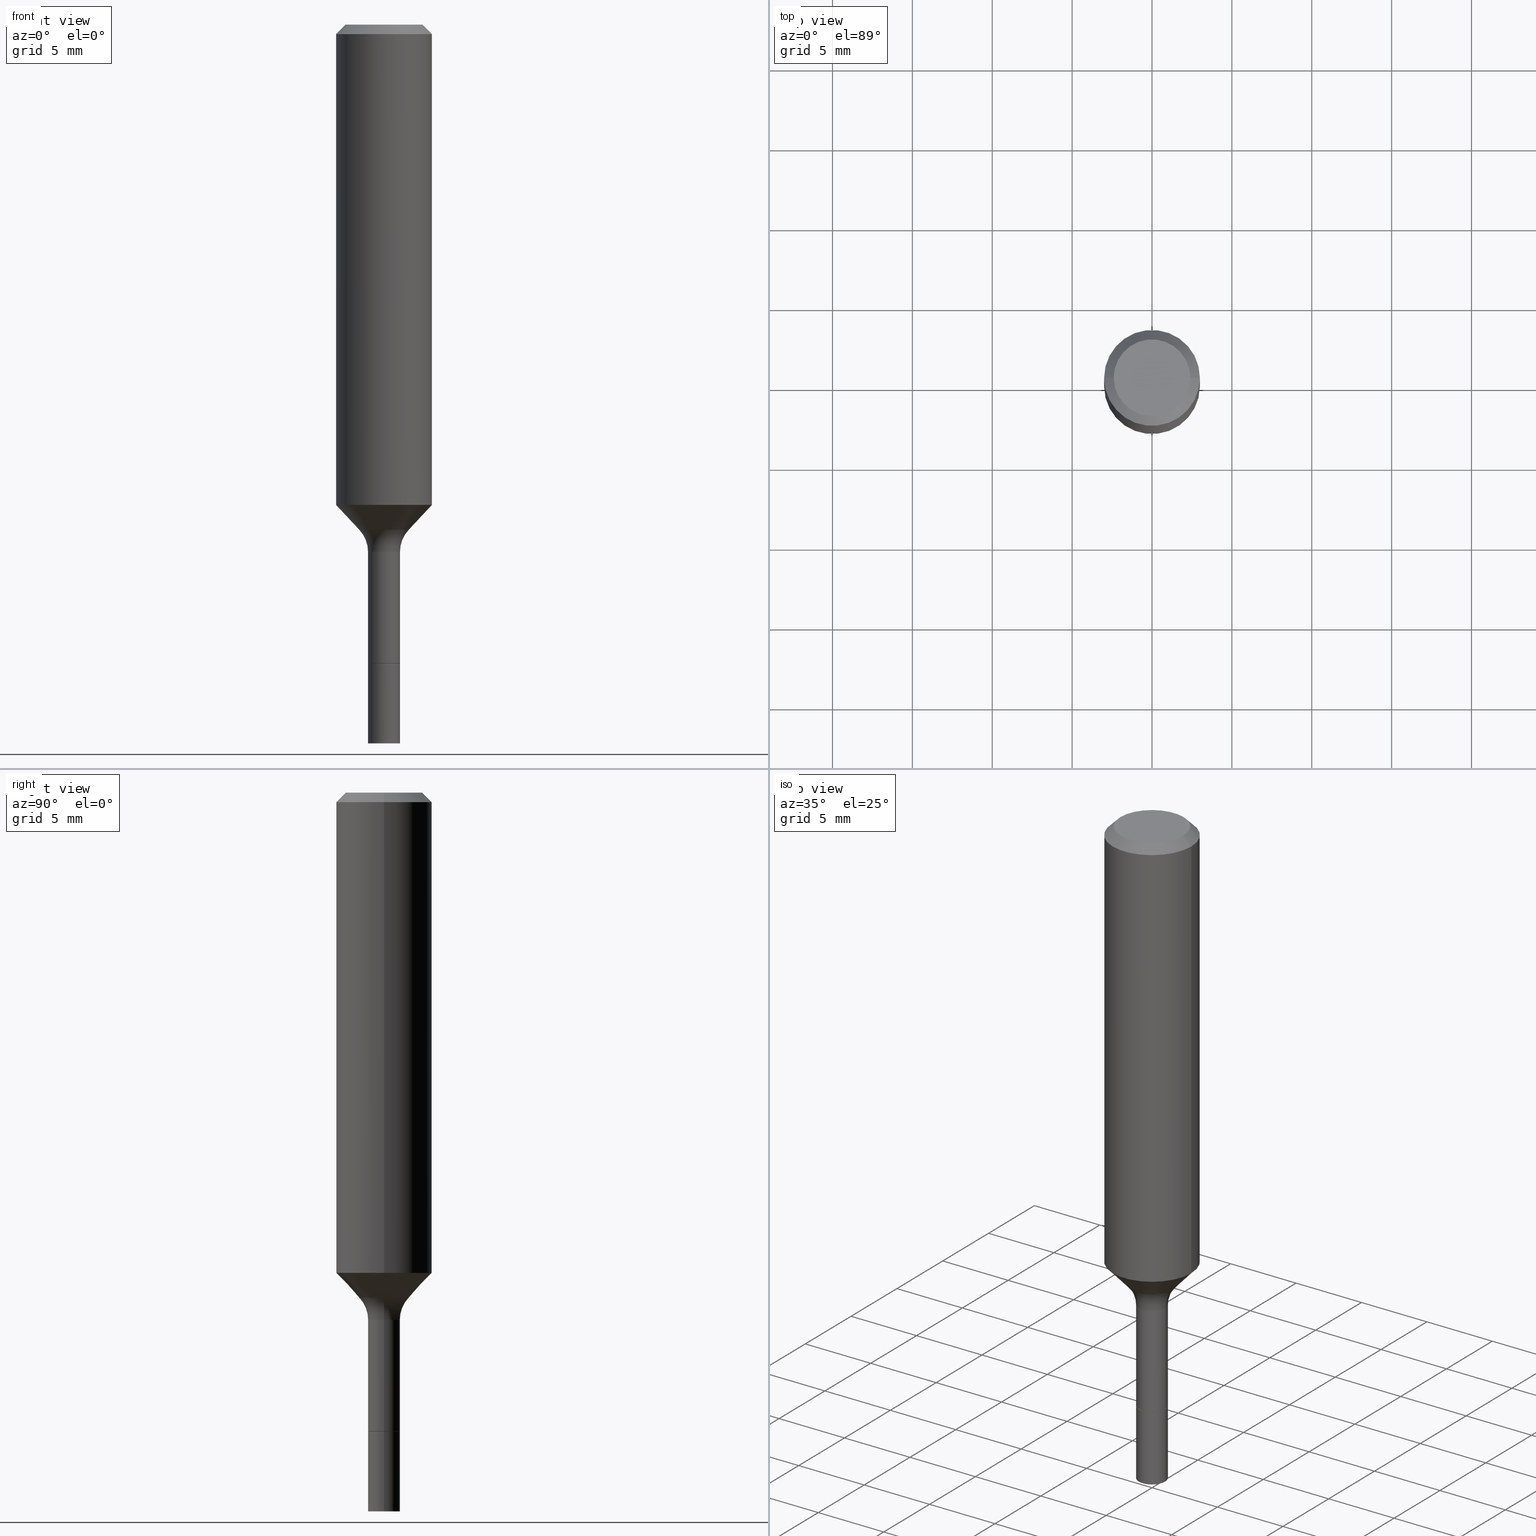
[diagram: canonical four-view strip — front | top / right | iso, engineering-drawing reading convention]
A machine part, canonical four-view strip (front | top / right | iso — engineering-drawing reading convention). The complete STEP part file that produces these views, byte-faithful:
ISO-10303-21;
HEADER;
FILE_DESCRIPTION (( 'STEP AP203' ),
    '1' );
FILE_NAME ('67065.STEP',
    '2025-04-01T15:27:19',
    ( '' ),
    ( '' ),
    'SwSTEP 2.0',
    'SolidWorks 2024',
    '' );
FILE_SCHEMA (( 'CONFIG_CONTROL_DESIGN' ));
ENDSEC;

DATA;
#1 = AXIS2_PLACEMENT_3D ( 'NONE', #217, #307, #136 ) ;
#2 = CYLINDRICAL_SURFACE ( 'NONE', #320, 0.03935000000000005160 ) ;
#3 = DATE_TIME_ROLE ( 'creation_date' ) ;
#4 = ORIENTED_EDGE ( 'NONE', *, *, #505, .T. ) ;
#5 = FACE_OUTER_BOUND ( 'NONE', #445, .T. ) ;
#6 = DIRECTION ( 'NONE',  ( -1.000000000000000000, 6.982962677686266711E-15, 0.000000000000000000 ) ) ;
#7 = ORIENTED_EDGE ( 'NONE', *, *, #205, .F. ) ;
#8 = VERTEX_POINT ( 'NONE', #454 ) ;
#9 = DIRECTION ( 'NONE',  ( -2.445468806185136597E-29, 3.491481338843145583E-15, 1.000000000000000000 ) ) ;
#10 = ORIENTED_EDGE ( 'NONE', *, *, #306, .T. ) ;
#11 = EDGE_CURVE ( 'NONE', #494, #71, #382, .T. ) ;
#12 = ORIENTED_EDGE ( 'NONE', *, *, #236, .T. ) ;
#13 = AXIS2_PLACEMENT_3D ( 'NONE', #221, #144, #180 ) ;
#14 = EDGE_CURVE ( 'NONE', #71, #412, #350, .T. ) ;
#15 = ORIENTED_EDGE ( 'NONE', *, *, #497, .F. ) ;
#16 = VECTOR ( 'NONE', #501, 39.37007874015748143 ) ;
#17 = DIRECTION ( 'NONE',  ( 1.000000000000000000, -6.982962677686266711E-15, 4.876176775795936353E-29 ) ) ;
#18 = CARTESIAN_POINT ( 'NONE',  ( 3.850879729099734571E-29, -5.498035664276301854E-15, -1.574699999999999989 ) ) ;
#19 = CC_DESIGN_SECURITY_CLASSIFICATION ( #493, ( #164 ) ) ;
#20 = CIRCLE ( 'NONE', #82, 0.03935000000000000303 ) ;
#21 = TOROIDAL_SURFACE ( 'NONE', #1, 0.1193499999999999700, 0.08000000000000007105 ) ;
#22 = PLANE ( 'NONE',  #511 ) ;
#23 = DIRECTION ( 'NONE',  ( 1.000000000000000000, -6.982962677686274599E-15, 0.000000000000000000 ) ) ;
#24 = CARTESIAN_POINT ( 'NONE',  ( 3.850879729099734571E-29, -5.498035664276301854E-15, -1.574699999999999989 ) ) ;
#25 = DIRECTION ( 'NONE',  ( 1.000000000000000000, -6.982962677686269077E-15, 0.000000000000000000 ) ) ;
#26 = CARTESIAN_POINT ( 'NONE',  ( 5.776197320209326656E-31, -8.246878922347558061E-17, -0.02362000000000013741 ) ) ;
#27 = EDGE_CURVE ( 'NONE', #254, #36, #355, .T. ) ;
#28 = AXIS2_PLACEMENT_3D ( 'NONE', #471, #311, #312 ) ;
#29 = PERSON ( 'UNSPECIFIED', 'UNSPECIFIED', 'UNSPECIFIED', ('UNSPECIFIED'), ('UNSPECIFIED'), ('UNSPECIFIED') ) ;
#30 = DIRECTION ( 'NONE',  ( 1.000000000000000000, -6.982962677686256455E-15, 0.000000000000000000 ) ) ;
#31 = PERSON_AND_ORGANIZATION ( #29, #188 ) ;
#32 = EDGE_CURVE ( 'NONE', #81, #285, #319, .T. ) ;
#33 = VECTOR ( 'NONE', #309, 39.37007874015748143 ) ;
#34 = LINE ( 'NONE', #250, #432 ) ;
#35 =( CONVERSION_BASED_UNIT ( 'INCH', #151 ) LENGTH_UNIT ( ) NAMED_UNIT ( #158 ) );
#36 = VERTEX_POINT ( 'NONE', #187 ) ;
#37 = DIRECTION ( 'NONE',  ( -2.445468806185136597E-29, 3.491481338843145583E-15, 1.000000000000000000 ) ) ;
#38 = MECHANICAL_CONTEXT ( 'NONE', #202, 'mechanical' ) ;
#39 = VERTEX_POINT ( 'NONE', #265 ) ;
#40 = CARTESIAN_POINT ( 'NONE',  ( 3.044951350166640667E-29, -4.347383532312048177E-15, -1.245140131194999888 ) ) ;
#41 = ORIENTED_EDGE ( 'NONE', *, *, #14, .T. ) ;
#42 = ORIENTED_EDGE ( 'NONE', *, *, #169, .F. ) ;
#43 = CARTESIAN_POINT ( 'NONE',  ( 3.044951350166640667E-29, -4.347383532312048177E-15, -1.245140131194999888 ) ) ;
#44 = EDGE_LOOP ( 'NONE', ( #249, #451, #371, #327 ) ) ;
#45 = ORIENTED_EDGE ( 'NONE', *, *, #32, .T. ) ;
#46 = AXIS2_PLACEMENT_3D ( 'NONE', #142, #190, #25 ) ;
#47 = EDGE_CURVE ( 'NONE', #410, #243, #139, .T. ) ;
#48 = ORIENTED_EDGE ( 'NONE', *, *, #389, .F. ) ;
#49 = CC_DESIGN_PERSON_AND_ORGANIZATION_ASSIGNMENT ( #80, #364, ( #418 ) ) ;
#50 = CIRCLE ( 'NONE', #28, 0.09447999999999998066 ) ;
#51 = DIRECTION ( 'NONE',  ( -2.445468806185136597E-29, 3.491481338843145583E-15, 1.000000000000000000 ) ) ;
#52 = DIRECTION ( 'NONE',  ( 1.000000000000000000, -6.982962677686267499E-15, 4.875432709231658792E-29 ) ) ;
#53 = ADVANCED_FACE ( 'NONE', ( #426 ), #474, .F. ) ;
#54 = DIRECTION ( 'NONE',  ( -1.000000000000000000, 6.982962677686265922E-15, -4.876176775795935793E-29 ) ) ;
#55 = CIRCLE ( 'NONE', #195, 0.09447999999999998066 ) ;
#56 = DIRECTION ( 'NONE',  ( -2.445468806185136877E-29, 3.491481338843145188E-15, 1.000000000000000000 ) ) ;
#57 = EDGE_LOOP ( 'NONE', ( #487, #238, #99, #422 ) ) ;
#58 = AXIS2_PLACEMENT_3D ( 'NONE', #302, #143, #390 ) ;
#59 = FACE_OUTER_BOUND ( 'NONE', #251, .T. ) ;
#60 = EDGE_CURVE ( 'NONE', #494, #81, #100, .T. ) ;
#61 = VECTOR ( 'NONE', #281, 39.37007874015748143 ) ;
#62 = DIRECTION ( 'NONE',  ( 1.000000000000000000, -6.982962677686266711E-15, 4.876176775795936353E-29 ) ) ;
#63 = CARTESIAN_POINT ( 'NONE',  ( -0.1193499999999999700, -3.689845540964756977E-15, -1.299700000000000077 ) ) ;
#64 = CARTESIAN_POINT ( 'NONE',  ( 7.545787641473140628E-46, -1.077338491108201769E-31, -3.085620075131671975E-17 ) ) ;
#65 = CARTESIAN_POINT ( 'NONE',  ( 0.000000000000000000, 0.000000000000000000, 0.000000000000000000 ) ) ;
#66 = DATE_AND_TIME ( #435, #278 ) ;
#67 = DIRECTION ( 'NONE',  ( 1.000000000000000000, -6.982962677686266711E-15, 0.000000000000000000 ) ) ;
#68 = AXIS2_PLACEMENT_3D ( 'NONE', #446, #478, #492 ) ;
#69 = CYLINDRICAL_SURFACE ( 'NONE', #461, 0.03935000000000005160 ) ;
#70 = PERSON_AND_ORGANIZATION_ROLE ( 'classification_officer' ) ;
#71 = VERTEX_POINT ( 'NONE', #182 ) ;
#72 = ADVANCED_FACE ( 'NONE', ( #150 ), #115, .F. ) ;
#73 = CC_DESIGN_DATE_AND_TIME_ASSIGNMENT ( #515, #112, ( #493 ) ) ;
#74 = APPROVAL ( #204, 'UNSPECIFIED' ) ;
#75 = CARTESIAN_POINT ( 'NONE',  ( 4.332637083918206427E-29, -6.185857488028401081E-15, -1.771700000000000053 ) ) ;
#76 = EDGE_LOOP ( 'NONE', ( #372, #457, #206, #484 ) ) ;
#77 = AXIS2_PLACEMENT_3D ( 'NONE', #347, #377, #17 ) ;
#78 = VECTOR ( 'NONE', #351, 39.37007874015748143 ) ;
#79 = DIRECTION ( 'NONE',  ( 0.7071067811865461294, -7.319954787623251312E-15, -0.7071067811865489050 ) ) ;
#80 = PERSON_AND_ORGANIZATION ( #29, #188 ) ;
#81 = VERTEX_POINT ( 'NONE', #207 ) ;
#82 = AXIS2_PLACEMENT_3D ( 'NONE', #111, #402, #290 ) ;
#83 = AXIS2_PLACEMENT_3D ( 'NONE', #430, #140, #185 ) ;
#84 = CARTESIAN_POINT ( 'NONE',  ( 3.772893820736570314E-46, -5.386692455541008845E-32, -1.542810037565835988E-17 ) ) ;
#85 = ORIENTED_EDGE ( 'NONE', *, *, #236, .F. ) ;
#86 = ORIENTED_EDGE ( 'NONE', *, *, #198, .T. ) ;
#87 = UNCERTAINTY_MEASURE_WITH_UNIT (LENGTH_MEASURE( 1.000000000000000082E-05 ), #35, 'distance_accuracy_value', 'NONE');
#88 = LOCAL_TIME ( 11, 27, 19.00000000000000000, #357 ) ;
#89 = SHAPE_DEFINITION_REPRESENTATION ( #338, #332 ) ;
#90 = ADVANCED_FACE ( 'NONE', ( #245 ), #2, .T. ) ;
#91 = DESIGN_CONTEXT ( 'detailed design', #479, 'design' ) ;
#92 = DATE_AND_TIME ( #166, #170 ) ;
#93 = VECTOR ( 'NONE', #56, 39.37007874015748143 ) ;
#94 = DIRECTION ( 'NONE',  ( 2.438088387897960049E-29, -3.491481338843145188E-15, -1.000000000000000000 ) ) ;
#95 = EDGE_LOOP ( 'NONE', ( #41, #365, #208, #210 ) ) ;
#96 = EDGE_CURVE ( 'NONE', #498, #463, #298, .T. ) ;
#97 = LINE ( 'NONE', #466, #152 ) ;
#98 = DIRECTION ( 'NONE',  ( -2.445468806185136597E-29, 3.491481338843145583E-15, 1.000000000000000000 ) ) ;
#99 = ORIENTED_EDGE ( 'NONE', *, *, #335, .T. ) ;
#100 = CIRCLE ( 'NONE', #443, 0.06084170387046641815 ) ;
#101 = CARTESIAN_POINT ( 'NONE',  ( 0.000000000000000000, 0.000000000000000000, 0.000000000000000000 ) ) ;
#102 = CARTESIAN_POINT ( 'NONE',  ( 3.850879729099734571E-29, -5.498035664276301854E-15, -1.574699999999999989 ) ) ;
#103 = DIRECTION ( 'NONE',  ( 1.000000000000000000, -6.982962677686269077E-15, 0.000000000000000000 ) ) ;
#104 = CYLINDRICAL_SURFACE ( 'NONE', #314, 0.1181000000000000660 ) ;
#105 = VECTOR ( 'NONE', #203, 39.37007874015748143 ) ;
#106 = LINE ( 'NONE', #460, #431 ) ;
#107 = AXIS2_PLACEMENT_3D ( 'NONE', #516, #363, #367 ) ;
#108 = CARTESIAN_POINT ( 'NONE',  ( 0.000000000000000000, 0.000000000000000000, 0.000000000000000000 ) ) ;
#109 = ADVANCED_FACE ( 'NONE', ( #356 ), #69, .T. ) ;
#110 = DIRECTION ( 'NONE',  ( 1.000000000000000000, -6.982962677686256455E-15, 0.000000000000000000 ) ) ;
#111 = CARTESIAN_POINT ( 'NONE',  ( 3.849656994696641770E-29, -5.496289923606880350E-15, -1.574200000000000044 ) ) ;
#112 = DATE_TIME_ROLE ( 'classification_date' ) ;
#113 = DIRECTION ( 'NONE',  ( 1.000000000000000000, -6.982962677686276177E-15, 0.000000000000000000 ) ) ;
#114 = CC_DESIGN_APPROVAL ( #74, ( #493 ) ) ;
#115 = PLANE ( 'NONE',  #455 ) ;
#116 =( NAMED_UNIT ( * ) SI_UNIT ( $, .STERADIAN. ) SOLID_ANGLE_UNIT ( ) );
#117 = ORIENTED_EDGE ( 'NONE', *, *, #32, .F. ) ;
#118 = CARTESIAN_POINT ( 'NONE',  ( 3.850879729099734571E-29, -5.498035664276301854E-15, -1.574699999999999989 ) ) ;
#119 = APPROVAL_STATUS ( 'not_yet_approved' ) ;
#120 = ORIENTED_EDGE ( 'NONE', *, *, #376, .F. ) ;
#121 = CARTESIAN_POINT ( 'NONE',  ( -0.03885000000000000259, -5.221989811433502568E-15, -1.574699999999999989 ) ) ;
#122 = PERSON_AND_ORGANIZATION ( #29, #188 ) ;
#123 = ORIENTED_EDGE ( 'NONE', *, *, #275, .F. ) ;
#124 = FACE_OUTER_BOUND ( 'NONE', #44, .T. ) ;
#125 = COORDINATED_UNIVERSAL_TIME_OFFSET ( 5, 0, .BEHIND. ) ;
#126 = EDGE_LOOP ( 'NONE', ( #15, #12, #450, #171 ) ) ;
#127 = ORIENTED_EDGE ( 'NONE', *, *, #222, .F. ) ;
#128 = CONICAL_SURFACE ( 'NONE', #393, 0.06084170387046641815, 0.7504915783575635269 ) ;
#129 = CC_DESIGN_PERSON_AND_ORGANIZATION_ASSIGNMENT ( #322, #483, ( #164 ) ) ;
#130 = EDGE_LOOP ( 'NONE', ( #48, #85 ) ) ;
#131 = ADVANCED_FACE ( 'NONE', ( #5 ), #128, .T. ) ;
#132 = AXIS2_PLACEMENT_3D ( 'NONE', #444, #279, #6 ) ;
#133 = EDGE_CURVE ( 'NONE', #412, #36, #359, .T. ) ;
#134 = APPROVAL ( #517, 'UNSPECIFIED' ) ;
#135 = ORIENTED_EDGE ( 'NONE', *, *, #417, .F. ) ;
#136 = DIRECTION ( 'NONE',  ( 1.000000000000000000, -6.982962677686265922E-15, 4.883557194083113462E-29 ) ) ;
#137 = EDGE_CURVE ( 'NONE', #494, #346, #155, .T. ) ;
#138 = DIRECTION ( 'NONE',  ( 1.000000000000000000, -6.982962677686275388E-15, 0.000000000000000000 ) ) ;
#139 = LINE ( 'NONE', #261, #93 ) ;
#140 = DIRECTION ( 'NONE',  ( -2.445468806185136597E-29, 3.491481338843145583E-15, 1.000000000000000000 ) ) ;
#141 = EDGE_CURVE ( 'NONE', #463, #39, #485, .T. ) ;
#142 = CARTESIAN_POINT ( 'NONE',  ( 2.894794661913970224E-29, -4.132999577133109060E-15, -1.183738126036360860 ) ) ;
#143 = DIRECTION ( 'NONE',  ( -2.445468806185136597E-29, 3.491481338843145583E-15, 1.000000000000000000 ) ) ;
#144 = DIRECTION ( 'NONE',  ( -2.445468806185136597E-29, 3.491481338843145583E-15, 1.000000000000000000 ) ) ;
#145 = CC_DESIGN_APPROVAL ( #134, ( #418 ) ) ;
#146 = DIRECTION ( 'NONE',  ( 1.000000000000000000, -6.982962677686266711E-15, 4.876176775795936353E-29 ) ) ;
#147 = CONICAL_SURFACE ( 'NONE', #68, 0.1180999999999999966, 0.7853981633974463916 ) ;
#148 = DIRECTION ( 'NONE',  ( 2.438088387897960049E-29, -3.491481338843145188E-15, -1.000000000000000000 ) ) ;
#149 = COORDINATED_UNIVERSAL_TIME_OFFSET ( 5, 0, .BEHIND. ) ;
#150 = FACE_OUTER_BOUND ( 'NONE', #378, .T. ) ;
#151 = LENGTH_MEASURE_WITH_UNIT ( LENGTH_MEASURE( 0.02539999999999999897 ), #398 );
#152 = VECTOR ( 'NONE', #383, 39.37007874015748143 ) ;
#153 = LINE ( 'NONE', #370, #105 ) ;
#154 = COORDINATED_UNIVERSAL_TIME_OFFSET ( 5, 0, .BEHIND. ) ;
#155 = CIRCLE ( 'NONE', #256, 0.08000000000000005718 ) ;
#156 = ORIENTED_EDGE ( 'NONE', *, *, #60, .T. ) ;
#157 = DIRECTION ( 'NONE',  ( -2.445468806185136597E-29, 3.491481338843145583E-15, 1.000000000000000000 ) ) ;
#158 = DIMENSIONAL_EXPONENTS ( 1.000000000000000000, 0.000000000000000000, 0.000000000000000000, 0.000000000000000000, 0.000000000000000000, 0.000000000000000000, 0.000000000000000000 ) ;
#159 =( NAMED_UNIT ( * ) PLANE_ANGLE_UNIT ( ) SI_UNIT ( $, .RADIAN. ) );
#160 = ORIENTED_EDGE ( 'NONE', *, *, #27, .T. ) ;
#161 = DIRECTION ( 'NONE',  ( -2.445468806185136877E-29, 3.491481338843145188E-15, 1.000000000000000000 ) ) ;
#162 = CARTESIAN_POINT ( 'NONE',  ( 0.03935000000000010711, -6.460637069395356787E-15, -1.771700000000000053 ) ) ;
#163 = EDGE_LOOP ( 'NONE', ( #201, #86, #289, #295 ) ) ;
#164 = PRODUCT_DEFINITION_FORMATION_WITH_SPECIFIED_SOURCE ( 'ANY', '', #428, .NOT_KNOWN. ) ;
#165 = CARTESIAN_POINT ( 'NONE',  ( 0.1193499999999999700, -5.371294891676292017E-15, -1.299700000000000077 ) ) ;
#166 = CALENDAR_DATE ( 2025, 1, 4 ) ;
#167 = ORIENTED_EDGE ( 'NONE', *, *, #294, .T. ) ;
#168 = VECTOR ( 'NONE', #397, 39.37007874015748143 ) ;
#169 = EDGE_CURVE ( 'NONE', #283, #8, #34, .T. ) ;
#170 = LOCAL_TIME ( 11, 27, 19.00000000000000000, #125 ) ;
#171 = ORIENTED_EDGE ( 'NONE', *, *, #500, .F. ) ;
#172 = DIRECTION ( 'NONE',  ( 1.000000000000000000, -6.982962677686274599E-15, 0.000000000000000000 ) ) ;
#173 = VECTOR ( 'NONE', #161, 39.37007874015748143 ) ;
#174 = ORIENTED_EDGE ( 'NONE', *, *, #137, .T. ) ;
#175 = EDGE_CURVE ( 'NONE', #498, #323, #153, .T. ) ;
#176 = ORIENTED_EDGE ( 'NONE', *, *, #438, .T. ) ;
#177 = CARTESIAN_POINT ( 'NONE',  ( 3.044951350166640667E-29, -4.347383532312048177E-15, -1.245140131194999888 ) ) ;
#178 = EDGE_LOOP ( 'NONE', ( #413, #252 ) ) ;
#179 = AXIS2_PLACEMENT_3D ( 'NONE', #260, #375, #103 ) ;
#180 = DIRECTION ( 'NONE',  ( 1.000000000000000000, -6.982962677686269077E-15, 0.000000000000000000 ) ) ;
#181 = DIRECTION ( 'NONE',  ( -2.438088387897960049E-29, 3.491481338843145188E-15, 1.000000000000000000 ) ) ;
#182 = CARTESIAN_POINT ( 'NONE',  ( 0.1181000000000001354, -4.957687469367858112E-15, -1.183738126036360860 ) ) ;
#183 = EDGE_CURVE ( 'NONE', #463, #498, #472, .T. ) ;
#184 = AXIS2_PLACEMENT_3D ( 'NONE', #102, #94, #429 ) ;
#185 = DIRECTION ( 'NONE',  ( 1.000000000000000000, -6.982962677686265922E-15, 4.883557194083113462E-29 ) ) ;
#186 = AXIS2_PLACEMENT_3D ( 'NONE', #18, #476, #110 ) ;
#187 = CARTESIAN_POINT ( 'NONE',  ( -0.1180999999999999966, -1.268583212245612878E-15, -0.02362000000000013741 ) ) ;
#188 = ORGANIZATION ( 'UNSPECIFIED', 'UNSPECIFIED', '' ) ;
#189 = DIRECTION ( 'NONE',  ( 1.000000000000000000, -6.982962677686256455E-15, 0.000000000000000000 ) ) ;
#190 = DIRECTION ( 'NONE',  ( -2.445468806185136597E-29, 3.491481338843145583E-15, 1.000000000000000000 ) ) ;
#191 = CIRCLE ( 'NONE', #313, 0.03935000000000010711 ) ;
#192 = DIRECTION ( 'NONE',  ( 1.000000000000000000, -6.982962677686260400E-15, 0.000000000000000000 ) ) ;
#193 = DIRECTION ( 'NONE',  ( 1.000000000000000000, 0.000000000000000000, 0.000000000000000000 ) ) ;
#194 = CARTESIAN_POINT ( 'NONE',  ( 3.850879729099734571E-29, -5.498035664276301854E-15, -1.574699999999999989 ) ) ;
#195 = AXIS2_PLACEMENT_3D ( 'NONE', #64, #227, #52 ) ;
#196 = ORIENTED_EDGE ( 'NONE', *, *, #137, .F. ) ;
#197 = FACE_OUTER_BOUND ( 'NONE', #292, .T. ) ;
#198 = EDGE_CURVE ( 'NONE', #39, #323, #20, .T. ) ;
#199 = APPROVAL_ROLE ( '' ) ;
#200 = CARTESIAN_POINT ( 'NONE',  ( -0.1181000000000001354, -3.293848606200430074E-15, -1.183738126036360860 ) ) ;
#201 = ORIENTED_EDGE ( 'NONE', *, *, #230, .F. ) ;
#202 = APPLICATION_CONTEXT ( 'configuration controlled 3d designs of mechanical parts and assemblies' ) ;
#203 = DIRECTION ( 'NONE',  ( 0.7071067811866199593, -2.468850131083015945E-15, 0.7071067811864750752 ) ) ;
#204 = APPROVAL_STATUS ( 'not_yet_approved' ) ;
#205 = EDGE_CURVE ( 'NONE', #243, #266, #385, .T. ) ;
#206 = ORIENTED_EDGE ( 'NONE', *, *, #306, .F. ) ;
#207 = CARTESIAN_POINT ( 'NONE',  ( -0.06084170387046643202, -3.915077225147777525E-15, -1.245140131194999888 ) ) ;
#208 = ORIENTED_EDGE ( 'NONE', *, *, #433, .F. ) ;
#209 = EDGE_LOOP ( 'NONE', ( #120, #45, #167, #196 ) ) ;
#210 = ORIENTED_EDGE ( 'NONE', *, *, #335, .F. ) ;
#211 = CARTESIAN_POINT ( 'NONE',  ( -0.03935000000000000303, -5.562348009630752072E-15, -1.574699999999999989 ) ) ;
#212 = VECTOR ( 'NONE', #218, 39.37007874015748143 ) ;
#213 = CARTESIAN_POINT ( 'NONE',  ( -0.03885000000000000259, -5.219340584259392156E-15, -1.574699999999999989 ) ) ;
#214 = FACE_OUTER_BOUND ( 'NONE', #95, .T. ) ;
#215 = CARTESIAN_POINT ( 'NONE',  ( 0.06084170387046641815, -4.772238879686355828E-15, -1.245140131194999888 ) ) ;
#216 = ORIENTED_EDGE ( 'NONE', *, *, #11, .F. ) ;
#217 = CARTESIAN_POINT ( 'NONE',  ( 3.178375807398822119E-29, -4.537878296094436237E-15, -1.299700000000000077 ) ) ;
#218 = DIRECTION ( 'NONE',  ( -2.445468806185136877E-29, 3.491481338843145188E-15, 1.000000000000000000 ) ) ;
#219 = AXIS2_PLACEMENT_3D ( 'NONE', #499, #504, #113 ) ;
#220 = CARTESIAN_POINT ( 'NONE',  ( 0.06084170387046643202, -4.772238879686355828E-15, -1.245140131194999888 ) ) ;
#221 = CARTESIAN_POINT ( 'NONE',  ( 3.849656994696641770E-29, -5.496289923606880350E-15, -1.574200000000000044 ) ) ;
#222 = EDGE_CURVE ( 'NONE', #346, #285, #273, .T. ) ;
#223 = CARTESIAN_POINT ( 'NONE',  ( 3.044951350166640667E-29, -4.347383532312048177E-15, -1.245140131194999888 ) ) ;
#224 = CARTESIAN_POINT ( 'NONE',  ( 2.894794661913970224E-29, -4.132999577133109060E-15, -1.183738126036360860 ) ) ;
#225 = FACE_OUTER_BOUND ( 'NONE', #163, .T. ) ;
#226 = DIRECTION ( 'NONE',  ( 7.105427357601001859E-15, 1.000000000000000000, -3.491481338843145583E-15 ) ) ;
#227 = DIRECTION ( 'NONE',  ( -2.445468806185136597E-29, 3.491481338843145583E-15, 1.000000000000000000 ) ) ;
#228 = CARTESIAN_POINT ( 'NONE',  ( 3.178375807398822119E-29, -4.537878296094436237E-15, -1.299700000000000077 ) ) ;
#229 = PERSON_AND_ORGANIZATION_ROLE ( 'design_supplier' ) ;
#230 = EDGE_CURVE ( 'NONE', #39, #285, #411, .T. ) ;
#231 = MANIFOLD_SOLID_BREP ( 'Body-Move/Copy2[1]', #399 ) ;
#232 = CARTESIAN_POINT ( 'NONE',  ( -0.03934999999999998221, 2.795985665215992968E-16, -1.935600958015304591E-30 ) ) ;
#233 = AXIS2_PLACEMENT_3D ( 'NONE', #288, #9, #30 ) ;
#234 = APPLICATION_PROTOCOL_DEFINITION ( 'international standard', 'config_control_design', 1994, #202 ) ;
#235 = DIRECTION ( 'NONE',  ( -6.982962677686266711E-15, -1.000000000000000000, 3.491481338843145583E-15 ) ) ;
#236 = EDGE_CURVE ( 'NONE', #496, #410, #191, .T. ) ;
#237 = APPLICATION_PROTOCOL_DEFINITION ( 'international standard', 'config_control_design', 1994, #479 ) ;
#238 = ORIENTED_EDGE ( 'NONE', *, *, #490, .T. ) ;
#239 = DIRECTION ( 'NONE',  ( -1.000000000000000000, 6.982962677686265922E-15, -4.876176775795935793E-29 ) ) ;
#240 = PERSON_AND_ORGANIZATION_ROLE ( 'design_owner' ) ;
#241 = CIRCLE ( 'NONE', #491, 0.06084170387046641815 ) ;
#242 = AXIS2_PLACEMENT_3D ( 'NONE', #224, #506, #310 ) ;
#243 = VERTEX_POINT ( 'NONE', #448 ) ;
#244 = ADVANCED_FACE ( 'NONE', ( #197 ), #147, .T. ) ;
#245 = FACE_OUTER_BOUND ( 'NONE', #489, .T. ) ;
#246 = CC_DESIGN_DATE_AND_TIME_ASSIGNMENT ( #282, #3, ( #418 ) ) ;
#247 = CC_DESIGN_PERSON_AND_ORGANIZATION_ASSIGNMENT ( #392, #70, ( #493 ) ) ;
#248 = CIRCLE ( 'NONE', #13, 0.03935000000000000303 ) ;
#249 = ORIENTED_EDGE ( 'NONE', *, *, #505, .F. ) ;
#250 = CARTESIAN_POINT ( 'NONE',  ( 0.1180999999999999966, -8.926936027602933910E-16, -0.02362000000000013741 ) ) ;
#251 = EDGE_LOOP ( 'NONE', ( #495, #401 ) ) ;
#252 = ORIENTED_EDGE ( 'NONE', *, *, #500, .T. ) ;
#253 = ADVANCED_FACE ( 'NONE', ( #124 ), #291, .T. ) ;
#254 = VERTEX_POINT ( 'NONE', #342 ) ;
#255 =( GEOMETRIC_REPRESENTATION_CONTEXT ( 3 ) GLOBAL_UNCERTAINTY_ASSIGNED_CONTEXT ( ( #87 ) ) GLOBAL_UNIT_ASSIGNED_CONTEXT ( ( #35, #159, #116 ) ) REPRESENTATION_CONTEXT ( 'NONE', 'WORKASPACE' ) );
#256 = AXIS2_PLACEMENT_3D ( 'NONE', #165, #235, #67 ) ;
#257 = ORIENTED_EDGE ( 'NONE', *, *, #198, .F. ) ;
#258 = CIRCLE ( 'NONE', #219, 0.03935000000000010711 ) ;
#259 = APPROVAL_PERSON_ORGANIZATION ( #373, #74, #336 ) ;
#260 = CARTESIAN_POINT ( 'NONE',  ( 3.850879729099734571E-29, -5.498035664276301854E-15, -1.574699999999999989 ) ) ;
#261 = CARTESIAN_POINT ( 'NONE',  ( 0.03935000000000005160, -5.772815245643255982E-15, -1.574699999999999989 ) ) ;
#262 = ORIENTED_EDGE ( 'NONE', *, *, #230, .T. ) ;
#263 = LINE ( 'NONE', #423, #78 ) ;
#264 = DIRECTION ( 'NONE',  ( -2.445468806185136597E-29, 3.491481338843145583E-15, 1.000000000000000000 ) ) ;
#265 = CARTESIAN_POINT ( 'NONE',  ( -0.03935000000000000303, -4.737485543329059687E-15, -1.574200000000000044 ) ) ;
#266 = VERTEX_POINT ( 'NONE', #211 ) ;
#267 = CIRCLE ( 'NONE', #242, 0.1181000000000001354 ) ;
#268 = ADVANCED_FACE ( 'NONE', ( #59 ), #22, .F. ) ;
#269 = CARTESIAN_POINT ( 'NONE',  ( 0.09447999999999998066, -7.704367267948738690E-16, -3.085620075131172158E-17 ) ) ;
#270 = CIRCLE ( 'NONE', #58, 0.1180999999999999966 ) ;
#271 = CARTESIAN_POINT ( 'NONE',  ( 0.03935000000000000303, -5.771069504973835267E-15, -1.574200000000000044 ) ) ;
#272 = CONICAL_SURFACE ( 'NONE', #467, 0.03885000000000000259, 0.7853981633975507526 ) ;
#273 = CIRCLE ( 'NONE', #406, 0.03934999999999996834 ) ;
#274 = DIRECTION ( 'NONE',  ( -2.445468806185136597E-29, 3.491481338843145583E-15, 1.000000000000000000 ) ) ;
#275 = EDGE_CURVE ( 'NONE', #254, #283, #50, .T. ) ;
#276 = APPROVAL_ROLE ( '' ) ;
#277 = DIRECTION ( 'NONE',  ( 1.000000000000000000, -6.982962677686275388E-15, 0.000000000000000000 ) ) ;
#278 = LOCAL_TIME ( 11, 27, 19.00000000000000000, #149 ) ;
#279 = DIRECTION ( 'NONE',  ( 2.445468806185136597E-29, -3.491481338843145583E-15, -1.000000000000000000 ) ) ;
#280 = ADVANCED_FACE ( 'NONE', ( #225 ), #349, .T. ) ;
#281 = DIRECTION ( 'NONE',  ( -2.445468806185136877E-29, 3.491481338843145188E-15, 1.000000000000000000 ) ) ;
#282 = DATE_AND_TIME ( #486, #481 ) ;
#283 = VERTEX_POINT ( 'NONE', #269 ) ;
#284 = CARTESIAN_POINT ( 'NONE',  ( -0.1181000000000000660, 8.391509709326787887E-16, -5.809262341591047287E-30 ) ) ;
#285 = VERTEX_POINT ( 'NONE', #507 ) ;
#286 = ADVANCED_FACE ( 'NONE', ( #508 ), #104, .T. ) ;
#287 = APPROVAL ( #119, 'UNSPECIFIED' ) ;
#288 = CARTESIAN_POINT ( 'NONE',  ( 3.850879729099734571E-29, -5.498035664276301854E-15, -1.574699999999999989 ) ) ;
#289 = ORIENTED_EDGE ( 'NONE', *, *, #477, .T. ) ;
#290 = DIRECTION ( 'NONE',  ( 1.000000000000000000, -6.982962677686269077E-15, 0.000000000000000000 ) ) ;
#291 = CONICAL_SURFACE ( 'NONE', #304, 0.06084170387046641815, 0.7504915783575635269 ) ;
#292 = EDGE_LOOP ( 'NONE', ( #135, #334, #409, #369 ) ) ;
#293 = ORIENTED_EDGE ( 'NONE', *, *, #477, .F. ) ;
#294 = EDGE_CURVE ( 'NONE', #285, #346, #473, .T. ) ;
#295 = ORIENTED_EDGE ( 'NONE', *, *, #294, .F. ) ;
#296 = AXIS2_PLACEMENT_3D ( 'NONE', #510, #148, #54 ) ;
#297 = ADVANCED_FACE ( 'NONE', ( #308 ), #434, .T. ) ;
#298 = CIRCLE ( 'NONE', #425, 0.03885000000000000259 ) ;
#299 = EDGE_LOOP ( 'NONE', ( #10, #262, #127, #293 ) ) ;
#300 = DIRECTION ( 'NONE',  ( -2.445468806185136877E-29, 3.491481338843145188E-15, 1.000000000000000000 ) ) ;
#301 = ORIENTED_EDGE ( 'NONE', *, *, #417, .T. ) ;
#302 = CARTESIAN_POINT ( 'NONE',  ( 5.776197320209326656E-31, -8.246878922347558061E-17, -0.02362000000000013741 ) ) ;
#303 = FACE_OUTER_BOUND ( 'NONE', #419, .T. ) ;
#304 = AXIS2_PLACEMENT_3D ( 'NONE', #43, #436, #172 ) ;
#305 = ORIENTED_EDGE ( 'NONE', *, *, #222, .T. ) ;
#306 = EDGE_CURVE ( 'NONE', #323, #39, #248, .T. ) ;
#307 = DIRECTION ( 'NONE',  ( -2.445468806185136597E-29, 3.491481338843145583E-15, 1.000000000000000000 ) ) ;
#308 = FACE_OUTER_BOUND ( 'NONE', #299, .T. ) ;
#309 = DIRECTION ( 'NONE',  ( -0.7071067811865461294, 2.468850131082242072E-15, -0.7071067811865489050 ) ) ;
#310 = DIRECTION ( 'NONE',  ( 1.000000000000000000, -6.982962677686269077E-15, 0.000000000000000000 ) ) ;
#311 = DIRECTION ( 'NONE',  ( -2.445468806185136597E-29, 3.491481338843145583E-15, 1.000000000000000000 ) ) ;
#312 = DIRECTION ( 'NONE',  ( 1.000000000000000000, -6.982962677686267499E-15, 4.875432709231658792E-29 ) ) ;
#313 = AXIS2_PLACEMENT_3D ( 'NONE', #75, #37, #514 ) ;
#314 = AXIS2_PLACEMENT_3D ( 'NONE', #108, #98, #146 ) ;
#315 = DATE_AND_TIME ( #325, #415 ) ;
#316 = FACE_OUTER_BOUND ( 'NONE', #337, .T. ) ;
#317 = PRODUCT_RELATED_PRODUCT_CATEGORY ( 'detail', '', ( #428 ) ) ;
#318 = SECURITY_CLASSIFICATION_LEVEL ( 'unclassified' ) ;
#319 = CIRCLE ( 'NONE', #339, 0.08000000000000005718 ) ;
#320 = AXIS2_PLACEMENT_3D ( 'NONE', #194, #157, #321 ) ;
#321 = DIRECTION ( 'NONE',  ( 1.000000000000000000, -6.982962677686260400E-15, 0.000000000000000000 ) ) ;
#322 = PERSON_AND_ORGANIZATION ( #29, #188 ) ;
#323 = VERTEX_POINT ( 'NONE', #271 ) ;
#324 = DIRECTION ( 'NONE',  ( -2.445468806185136597E-29, 3.491481338843145583E-15, 1.000000000000000000 ) ) ;
#325 = CALENDAR_DATE ( 2025, 1, 4 ) ;
#326 = ADVANCED_FACE ( 'NONE', ( #303 ), #449, .F. ) ;
#327 = ORIENTED_EDGE ( 'NONE', *, *, #490, .F. ) ;
#328 = DIRECTION ( 'NONE',  ( -2.445468806185136597E-29, 3.491481338843145583E-15, 1.000000000000000000 ) ) ;
#329 = APPROVAL_DATE_TIME ( #66, #287 ) ;
#330 = CLOSED_SHELL ( 'NONE', ( #341, #244, #386, #131, #456, #297, #280, #326, #253, #286, #396, #72, #268, #366 ) ) ;
#331 = ORIENTED_EDGE ( 'NONE', *, *, #275, .T. ) ;
#332 = ADVANCED_BREP_SHAPE_REPRESENTATION ( '67065', ( #231, #414, #381 ), #255 ) ;
#333 = DIRECTION ( 'NONE',  ( 2.438088387897960049E-29, -3.491481338843145188E-15, -1.000000000000000000 ) ) ;
#334 = ORIENTED_EDGE ( 'NONE', *, *, #169, .T. ) ;
#335 = EDGE_CURVE ( 'NONE', #71, #8, #391, .T. ) ;
#336 = APPROVAL_ROLE ( '' ) ;
#337 = EDGE_LOOP ( 'NONE', ( #452, #459, #447, #257 ) ) ;
#338 = PRODUCT_DEFINITION_SHAPE ( 'NONE', 'NONE',  #418 ) ;
#339 = AXIS2_PLACEMENT_3D ( 'NONE', #63, #226, #465 ) ;
#340 = CC_DESIGN_APPROVAL ( #287, ( #164 ) ) ;
#341 = ADVANCED_FACE ( 'NONE', ( #384 ), #272, .T. ) ;
#342 = CARTESIAN_POINT ( 'NONE',  ( -0.09447999999999998066, 7.009847083995354710E-16, -3.085620075132147757E-17 ) ) ;
#343 = CC_DESIGN_PERSON_AND_ORGANIZATION_ASSIGNMENT ( #122, #229, ( #164 ) ) ;
#344 = DIRECTION ( 'NONE',  ( -2.445468806185136597E-29, 3.491481338843145583E-15, 1.000000000000000000 ) ) ;
#345 = ADVANCED_FACE ( 'NONE', ( #354 ), #424, .T. ) ;
#346 = VERTEX_POINT ( 'NONE', #380 ) ;
#347 = CARTESIAN_POINT ( 'NONE',  ( 0.000000000000000000, 0.000000000000000000, 0.000000000000000000 ) ) ;
#348 = FACE_OUTER_BOUND ( 'NONE', #209, .T. ) ;
#349 = CYLINDRICAL_SURFACE ( 'NONE', #374, 0.03934999999999998221 ) ;
#350 = CIRCLE ( 'NONE', #46, 0.1181000000000001354 ) ;
#351 = DIRECTION ( 'NONE',  ( -0.6819983600624998088, 7.399397606724291309E-15, 0.7313537016191692386 ) ) ;
#352 = CARTESIAN_POINT ( 'NONE',  ( 3.850879729099734571E-29, -5.498035664276301854E-15, -1.574699999999999989 ) ) ;
#353 = APPROVAL_PERSON_ORGANIZATION ( #395, #134, #199 ) ;
#354 = FACE_OUTER_BOUND ( 'NONE', #130, .T. ) ;
#355 = LINE ( 'NONE', #469, #33 ) ;
#356 = FACE_OUTER_BOUND ( 'NONE', #126, .T. ) ;
#357 = COORDINATED_UNIVERSAL_TIME_OFFSET ( 5, 0, .BEHIND. ) ;
#358 = CONICAL_SURFACE ( 'NONE', #132, 0.1180999999999999966, 0.7853981633974463916 ) ;
#359 = LINE ( 'NONE', #284, #61 ) ;
#360 = DIRECTION ( 'NONE',  ( 0.000000000000000000, 0.000000000000000000, 1.000000000000000000 ) ) ;
#361 = CIRCLE ( 'NONE', #509, 0.1180999999999999966 ) ;
#362 = ORIENTED_EDGE ( 'NONE', *, *, #497, .T. ) ;
#363 = DIRECTION ( 'NONE',  ( -2.445468806185136597E-29, 3.491481338843145583E-15, 1.000000000000000000 ) ) ;
#364 = PERSON_AND_ORGANIZATION_ROLE ( 'creator' ) ;
#365 = ORIENTED_EDGE ( 'NONE', *, *, #133, .T. ) ;
#366 = ADVANCED_FACE ( 'NONE', ( #316 ), #420, .T. ) ;
#367 = DIRECTION ( 'NONE',  ( 1.000000000000000000, -6.982962677686269077E-15, 0.000000000000000000 ) ) ;
#368 = APPROVAL_DATE_TIME ( #92, #74 ) ;
#369 = ORIENTED_EDGE ( 'NONE', *, *, #27, .F. ) ;
#370 = CARTESIAN_POINT ( 'NONE',  ( 0.03885000000000000259, -5.769323764304412975E-15, -1.574699999999999989 ) ) ;
#371 = ORIENTED_EDGE ( 'NONE', *, *, #11, .T. ) ;
#372 = ORIENTED_EDGE ( 'NONE', *, *, #96, .T. ) ;
#373 = PERSON_AND_ORGANIZATION ( #29, #188 ) ;
#374 = AXIS2_PLACEMENT_3D ( 'NONE', #101, #51, #468 ) ;
#375 = DIRECTION ( 'NONE',  ( -2.445468806185136597E-29, 3.491481338843145583E-15, 1.000000000000000000 ) ) ;
#376 = EDGE_CURVE ( 'NONE', #81, #494, #241, .T. ) ;
#377 = DIRECTION ( 'NONE',  ( -2.445468806185136597E-29, 3.491481338843145583E-15, 1.000000000000000000 ) ) ;
#378 = EDGE_LOOP ( 'NONE', ( #331, #301 ) ) ;
#379 = CARTESIAN_POINT ( 'NONE',  ( -0.03935000000000010711, -5.562348009630751283E-15, -1.771700000000000053 ) ) ;
#380 = CARTESIAN_POINT ( 'NONE',  ( 0.03934999999999996834, -4.812657877461391154E-15, -1.299700000000000077 ) ) ;
#381 = AXIS2_PLACEMENT_3D ( 'NONE', #404, #360, #193 ) ;
#382 = LINE ( 'NONE', #215, #16 ) ;
#383 = DIRECTION ( 'NONE',  ( -2.445468806185136877E-29, 3.491481338843145188E-15, 1.000000000000000000 ) ) ;
#384 = FACE_OUTER_BOUND ( 'NONE', #76, .T. ) ;
#385 = CIRCLE ( 'NONE', #107, 0.03935000000000000303 ) ;
#386 = ADVANCED_FACE ( 'NONE', ( #214 ), #464, .T. ) ;
#387 = DIRECTION ( 'NONE',  ( -2.445468806185136597E-29, 3.491481338843145583E-15, 1.000000000000000000 ) ) ;
#388 = DIRECTION ( 'NONE',  ( 1.000000000000000000, -6.982962677686265922E-15, 4.876176775795935793E-29 ) ) ;
#389 = EDGE_CURVE ( 'NONE', #410, #496, #258, .T. ) ;
#390 = DIRECTION ( 'NONE',  ( 1.000000000000000000, -6.982962677686266711E-15, 0.000000000000000000 ) ) ;
#391 = LINE ( 'NONE', #462, #212 ) ;
#392 = PERSON_AND_ORGANIZATION ( #29, #188 ) ;
#393 = AXIS2_PLACEMENT_3D ( 'NONE', #40, #328, #488 ) ;
#394 = CARTESIAN_POINT ( 'NONE',  ( 3.850879729099734571E-29, -5.498035664276301854E-15, -1.574699999999999989 ) ) ;
#395 = PERSON_AND_ORGANIZATION ( #29, #188 ) ;
#396 = ADVANCED_FACE ( 'NONE', ( #400 ), #358, .T. ) ;
#397 = DIRECTION ( 'NONE',  ( -0.7071067811866199593, 7.493145998870616062E-15, 0.7071067811864750752 ) ) ;
#398 =( LENGTH_UNIT ( ) NAMED_UNIT ( * ) SI_UNIT ( $, .METRE. ) );
#399 = CLOSED_SHELL ( 'NONE', ( #90, #345, #109, #53 ) ) ;
#400 = FACE_OUTER_BOUND ( 'NONE', #518, .T. ) ;
#401 = ORIENTED_EDGE ( 'NONE', *, *, #183, .F. ) ;
#402 = DIRECTION ( 'NONE',  ( -2.445468806185136597E-29, 3.491481338843145583E-15, 1.000000000000000000 ) ) ;
#403 = APPROVAL_PERSON_ORGANIZATION ( #31, #287, #276 ) ;
#404 = CARTESIAN_POINT ( 'NONE',  ( 0.000000000000000000, 0.000000000000000000, 0.000000000000000000 ) ) ;
#405 = ORIENTED_EDGE ( 'NONE', *, *, #60, .F. ) ;
#406 = AXIS2_PLACEMENT_3D ( 'NONE', #442, #324, #277 ) ;
#407 = DIRECTION ( 'NONE',  ( -2.445468806185136597E-29, 3.491481338843145583E-15, 1.000000000000000000 ) ) ;
#408 = AXIS2_PLACEMENT_3D ( 'NONE', #65, #264, #62 ) ;
#409 = ORIENTED_EDGE ( 'NONE', *, *, #433, .T. ) ;
#410 = VERTEX_POINT ( 'NONE', #162 ) ;
#411 = LINE ( 'NONE', #232, #173 ) ;
#412 = VERTEX_POINT ( 'NONE', #200 ) ;
#413 = ORIENTED_EDGE ( 'NONE', *, *, #205, .T. ) ;
#414 = MANIFOLD_SOLID_BREP ( 'Body-Move/Copy2[2]', #330 ) ;
#415 = LOCAL_TIME ( 11, 27, 19.00000000000000000, #154 ) ;
#416 = ORIENTED_EDGE ( 'NONE', *, *, #47, .F. ) ;
#417 = EDGE_CURVE ( 'NONE', #283, #254, #55, .T. ) ;
#418 = PRODUCT_DEFINITION ( 'UNKNOWN', '', #164, #91 ) ;
#419 = EDGE_LOOP ( 'NONE', ( #117, #405, #174, #305 ) ) ;
#420 = CONICAL_SURFACE ( 'NONE', #186, 0.03885000000000000259, 0.7853981633975507526 ) ;
#421 = DIRECTION ( 'NONE',  ( 1.000000000000000000, -6.982962677686274599E-15, 0.000000000000000000 ) ) ;
#422 = ORIENTED_EDGE ( 'NONE', *, *, #438, .F. ) ;
#423 = CARTESIAN_POINT ( 'NONE',  ( -0.06084170387046641815, -3.915077225147777525E-15, -1.245140131194999888 ) ) ;
#424 = PLANE ( 'NONE',  #296 ) ;
#425 = AXIS2_PLACEMENT_3D ( 'NONE', #118, #482, #439 ) ;
#426 = FACE_OUTER_BOUND ( 'NONE', #178, .T. ) ;
#427 = DIRECTION ( 'NONE',  ( -2.445468806185136597E-29, 3.491481338843145583E-15, 1.000000000000000000 ) ) ;
#428 = PRODUCT ( '67065', '67065', '', ( #38 ) ) ;
#429 = DIRECTION ( 'NONE',  ( -1.000000000000000000, 6.982962677686265922E-15, -4.876176775795935793E-29 ) ) ;
#430 = CARTESIAN_POINT ( 'NONE',  ( 3.178375807398822119E-29, -4.537878296094436237E-15, -1.299700000000000077 ) ) ;
#431 = VECTOR ( 'NONE', #300, 39.37007874015748143 ) ;
#432 = VECTOR ( 'NONE', #79, 39.37007874015748143 ) ;
#433 = EDGE_CURVE ( 'NONE', #8, #36, #270, .T. ) ;
#434 = CYLINDRICAL_SURFACE ( 'NONE', #408, 0.03934999999999998221 ) ;
#435 = CALENDAR_DATE ( 2025, 1, 4 ) ;
#436 = DIRECTION ( 'NONE',  ( -2.445468806185136597E-29, 3.491481338843145583E-15, 1.000000000000000000 ) ) ;
#437 = APPROVAL_DATE_TIME ( #315, #134 ) ;
#438 = EDGE_CURVE ( 'NONE', #36, #8, #361, .T. ) ;
#439 = DIRECTION ( 'NONE',  ( 1.000000000000000000, -6.982962677686256455E-15, 0.000000000000000000 ) ) ;
#440 = COORDINATED_UNIVERSAL_TIME_OFFSET ( 5, 0, .BEHIND. ) ;
#441 = ORIENTED_EDGE ( 'NONE', *, *, #14, .F. ) ;
#442 = CARTESIAN_POINT ( 'NONE',  ( 3.178375807398822119E-29, -4.537878296094436237E-15, -1.299700000000000077 ) ) ;
#443 = AXIS2_PLACEMENT_3D ( 'NONE', #223, #387, #23 ) ;
#444 = CARTESIAN_POINT ( 'NONE',  ( 5.776197320209326656E-31, -8.246878922347558061E-17, -0.02362000000000013741 ) ) ;
#445 = EDGE_LOOP ( 'NONE', ( #156, #4, #441, #216 ) ) ;
#446 = CARTESIAN_POINT ( 'NONE',  ( 5.776197320209326656E-31, -8.246878922347558061E-17, -0.02362000000000013741 ) ) ;
#447 = ORIENTED_EDGE ( 'NONE', *, *, #175, .T. ) ;
#448 = CARTESIAN_POINT ( 'NONE',  ( 0.03935000000000000303, -5.772815245643255982E-15, -1.574699999999999989 ) ) ;
#449 = TOROIDAL_SURFACE ( 'NONE', #83, 0.1193499999999999700, 0.08000000000000007105 ) ;
#450 = ORIENTED_EDGE ( 'NONE', *, *, #47, .T. ) ;
#451 = ORIENTED_EDGE ( 'NONE', *, *, #376, .T. ) ;
#452 = ORIENTED_EDGE ( 'NONE', *, *, #141, .F. ) ;
#453 = CIRCLE ( 'NONE', #179, 0.03935000000000000303 ) ;
#454 = CARTESIAN_POINT ( 'NONE',  ( 0.1180999999999999966, -9.071566814582237199E-16, -0.02362000000000013741 ) ) ;
#455 = AXIS2_PLACEMENT_3D ( 'NONE', #84, #333, #239 ) ;
#456 = ADVANCED_FACE ( 'NONE', ( #348 ), #21, .F. ) ;
#457 = ORIENTED_EDGE ( 'NONE', *, *, #141, .T. ) ;
#458 = CARTESIAN_POINT ( 'NONE',  ( 0.03885000000000000259, -5.769323764304412975E-15, -1.574699999999999989 ) ) ;
#459 = ORIENTED_EDGE ( 'NONE', *, *, #183, .T. ) ;
#460 = CARTESIAN_POINT ( 'NONE',  ( 0.03934999999999998221, -2.747795813669544732E-16, 1.918775561275700023E-30 ) ) ;
#461 = AXIS2_PLACEMENT_3D ( 'NONE', #394, #407, #192 ) ;
#462 = CARTESIAN_POINT ( 'NONE',  ( 0.1181000000000000660, -8.246878922347485584E-16, 5.758764772215003944E-30 ) ) ;
#463 = VERTEX_POINT ( 'NONE', #213 ) ;
#464 = CYLINDRICAL_SURFACE ( 'NONE', #77, 0.1181000000000000660 ) ;
#465 = DIRECTION ( 'NONE',  ( -1.000000000000000000, 7.105427357600999492E-15, 0.000000000000000000 ) ) ;
#466 = CARTESIAN_POINT ( 'NONE',  ( -0.03935000000000005160, -5.218437097754701670E-15, -1.574699999999999989 ) ) ;
#467 = AXIS2_PLACEMENT_3D ( 'NONE', #24, #427, #189 ) ;
#468 = DIRECTION ( 'NONE',  ( 1.000000000000000000, -6.982962677686266711E-15, 4.876176775795936353E-29 ) ) ;
#469 = CARTESIAN_POINT ( 'NONE',  ( -0.1180999999999999966, 7.422191030112725094E-16, -0.02362000000000013741 ) ) ;
#470 = DIRECTION ( 'NONE',  ( -2.445468806185136597E-29, 3.491481338843145583E-15, 1.000000000000000000 ) ) ;
#471 = CARTESIAN_POINT ( 'NONE',  ( 7.545787641473140628E-46, -1.077338491108201769E-31, -3.085620075131671975E-17 ) ) ;
#472 = CIRCLE ( 'NONE', #233, 0.03885000000000000259 ) ;
#473 = CIRCLE ( 'NONE', #512, 0.03934999999999996834 ) ;
#474 = PLANE ( 'NONE',  #184 ) ;
#475 = CC_DESIGN_PERSON_AND_ORGANIZATION_ASSIGNMENT ( #513, #240, ( #428 ) ) ;
#476 = DIRECTION ( 'NONE',  ( -2.445468806185136597E-29, 3.491481338843145583E-15, 1.000000000000000000 ) ) ;
#477 = EDGE_CURVE ( 'NONE', #323, #346, #106, .T. ) ;
#478 = DIRECTION ( 'NONE',  ( 2.445468806185136597E-29, -3.491481338843145583E-15, -1.000000000000000000 ) ) ;
#479 = APPLICATION_CONTEXT ( 'configuration controlled 3d designs of mechanical parts and assemblies' ) ;
#480 = CALENDAR_DATE ( 2025, 1, 4 ) ;
#481 = LOCAL_TIME ( 11, 27, 19.00000000000000000, #440 ) ;
#482 = DIRECTION ( 'NONE',  ( -2.445468806185136597E-29, 3.491481338843145583E-15, 1.000000000000000000 ) ) ;
#483 = PERSON_AND_ORGANIZATION_ROLE ( 'creator' ) ;
#484 = ORIENTED_EDGE ( 'NONE', *, *, #175, .F. ) ;
#485 = LINE ( 'NONE', #121, #168 ) ;
#486 = CALENDAR_DATE ( 2025, 1, 4 ) ;
#487 = ORIENTED_EDGE ( 'NONE', *, *, #133, .F. ) ;
#488 = DIRECTION ( 'NONE',  ( 1.000000000000000000, -6.982962677686274599E-15, 0.000000000000000000 ) ) ;
#489 = EDGE_LOOP ( 'NONE', ( #502, #362, #7, #416 ) ) ;
#490 = EDGE_CURVE ( 'NONE', #412, #71, #267, .T. ) ;
#491 = AXIS2_PLACEMENT_3D ( 'NONE', #177, #344, #421 ) ;
#492 = DIRECTION ( 'NONE',  ( -1.000000000000000000, 6.982962677686266711E-15, 0.000000000000000000 ) ) ;
#493 = SECURITY_CLASSIFICATION ( '', '', #318 ) ;
#494 = VERTEX_POINT ( 'NONE', #220 ) ;
#495 = ORIENTED_EDGE ( 'NONE', *, *, #96, .F. ) ;
#496 = VERTEX_POINT ( 'NONE', #379 ) ;
#497 = EDGE_CURVE ( 'NONE', #496, #266, #97, .T. ) ;
#498 = VERTEX_POINT ( 'NONE', #458 ) ;
#499 = CARTESIAN_POINT ( 'NONE',  ( 4.332637083918206427E-29, -6.185857488028401081E-15, -1.771700000000000053 ) ) ;
#500 = EDGE_CURVE ( 'NONE', #266, #243, #453, .T. ) ;
#501 = DIRECTION ( 'NONE',  ( 0.6819983600624998088, -2.208861293262488819E-15, 0.7313537016191692386 ) ) ;
#502 = ORIENTED_EDGE ( 'NONE', *, *, #389, .T. ) ;
#503 = DIRECTION ( 'NONE',  ( 1.000000000000000000, -6.982962677686266711E-15, 0.000000000000000000 ) ) ;
#504 = DIRECTION ( 'NONE',  ( -2.445468806185136597E-29, 3.491481338843145583E-15, 1.000000000000000000 ) ) ;
#505 = EDGE_CURVE ( 'NONE', #81, #412, #263, .T. ) ;
#506 = DIRECTION ( 'NONE',  ( -2.445468806185136597E-29, 3.491481338843145583E-15, 1.000000000000000000 ) ) ;
#507 = CARTESIAN_POINT ( 'NONE',  ( -0.03934999999999996834, -4.737485543329059687E-15, -1.299700000000000077 ) ) ;
#508 = FACE_OUTER_BOUND ( 'NONE', #57, .T. ) ;
#509 = AXIS2_PLACEMENT_3D ( 'NONE', #26, #470, #503 ) ;
#510 = CARTESIAN_POINT ( 'NONE',  ( 4.332637083918206427E-29, -6.185857488028401081E-15, -1.771700000000000053 ) ) ;
#511 = AXIS2_PLACEMENT_3D ( 'NONE', #352, #181, #388 ) ;
#512 = AXIS2_PLACEMENT_3D ( 'NONE', #228, #274, #138 ) ;
#513 = PERSON_AND_ORGANIZATION ( #29, #188 ) ;
#514 = DIRECTION ( 'NONE',  ( 1.000000000000000000, -6.982962677686276177E-15, 0.000000000000000000 ) ) ;
#515 = DATE_AND_TIME ( #480, #88 ) ;
#516 = CARTESIAN_POINT ( 'NONE',  ( 3.850879729099734571E-29, -5.498035664276301854E-15, -1.574699999999999989 ) ) ;
#517 = APPROVAL_STATUS ( 'not_yet_approved' ) ;
#518 = EDGE_LOOP ( 'NONE', ( #42, #123, #160, #176 ) ) ;
ENDSEC;
END-ISO-10303-21;
